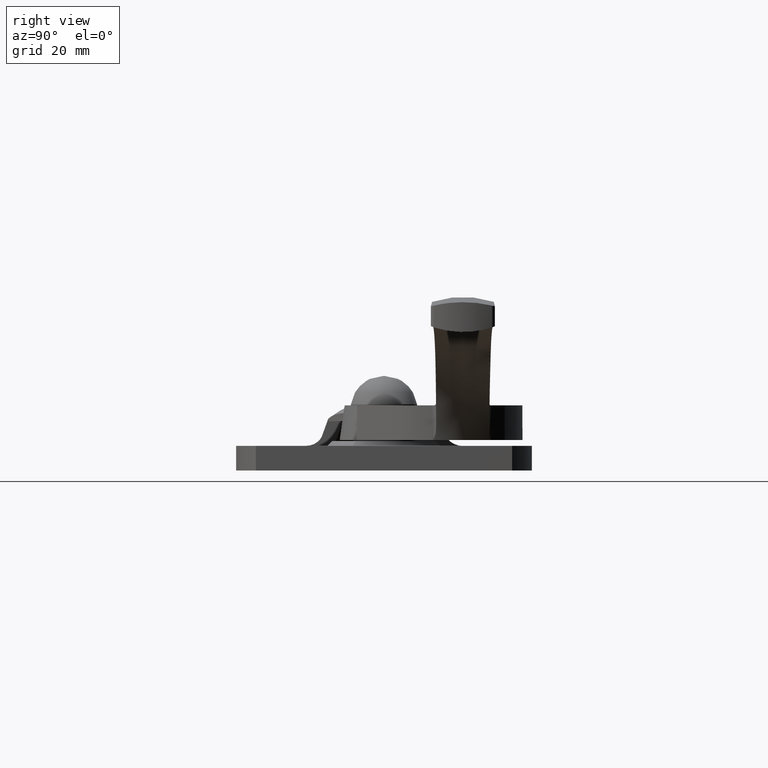
[diagram: clean part render]
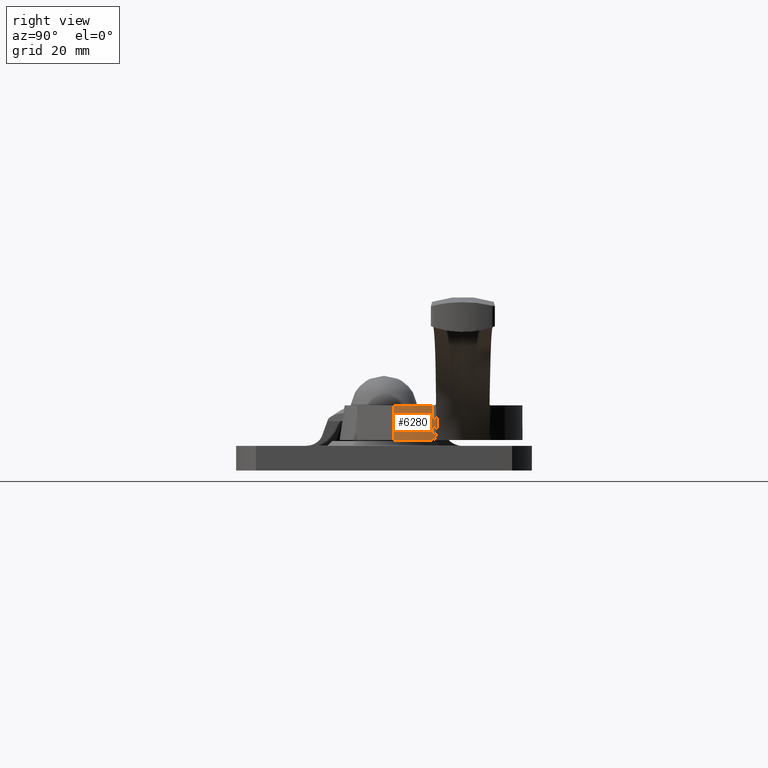
[diagram: same view with one face highlighted and labeled with its STEP entity id]
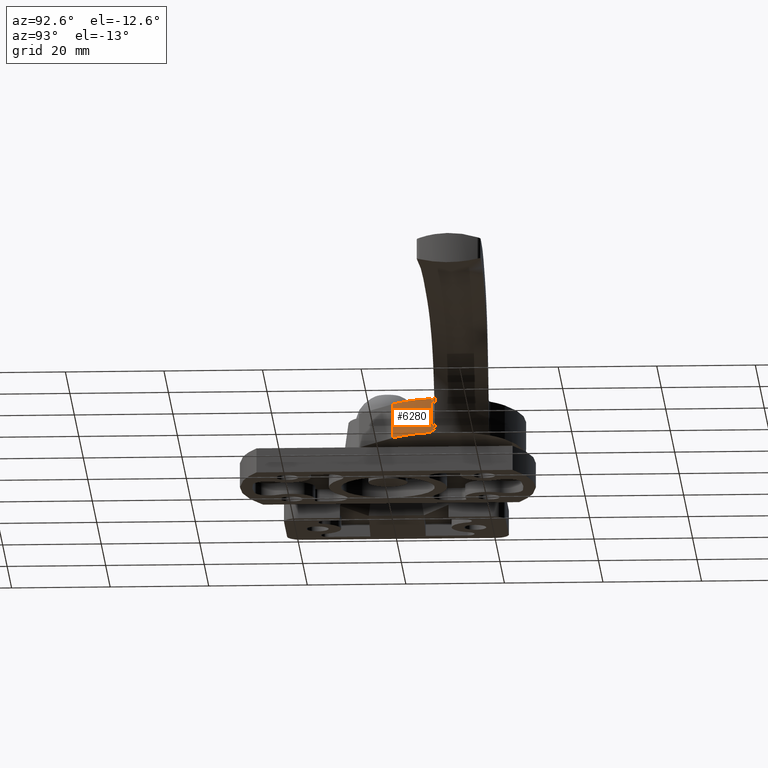
[diagram: same view with one face highlighted and labeled with its STEP entity id]
A machine part, right view. The second image highlights one B-rep face of the part: STEP entity #6280.
A second angle (auxiliary view) of the same face is appended — the face is thin or edge-on in the first view.
In plain terms, the highlighted face is a freeform B-spline surface patch.
Its self-contained STEP definition (entity closure, byte-faithful):
#5264=CARTESIAN_POINT('',(22.796887789675299,9.768281165466760,6.200000000000090));
#5265=VERTEX_POINT('',#5264);
#5310=CARTESIAN_POINT('',(22.796887789675299,9.768281165466760,13.199999999999999));
#5311=VERTEX_POINT('',#5310);
#5325=CARTESIAN_POINT('',(22.796887789675299,9.768281165466760,13.199999999999999));
#5326=CARTESIAN_POINT('',(22.796887789675299,9.768281165466760,6.200000000000090));
#5327=QUASI_UNIFORM_CURVE('',1,(#5325,#5326),.UNSPECIFIED.,.F.,.U.);
#5328=EDGE_CURVE('',#5311,#5265,#5327,.T.);
#6065=CARTESIAN_POINT('',(18.141911000000000,1.854384000000000,13.199999999999999));
#6066=VERTEX_POINT('',#6065);
#6073=CARTESIAN_POINT('',(18.141911000000000,1.854384000000000,6.200000000000090));
#6074=VERTEX_POINT('',#6073);
#6080=CARTESIAN_POINT('',(18.141911000000000,1.854384000000000,6.200000000000090));
#6081=CARTESIAN_POINT('',(18.141911000000000,1.854384000000000,13.199999999999999));
#6082=QUASI_UNIFORM_CURVE('',1,(#6080,#6081),.UNSPECIFIED.,.F.,.U.);
#6083=EDGE_CURVE('',#6074,#6066,#6082,.T.);
#6166=CARTESIAN_POINT('',(22.796887789675289,9.768281165466767,6.200000000000090));
#6167=CARTESIAN_POINT('',(21.873414532033678,4.985486891369154,6.200000000000090));
#6168=CARTESIAN_POINT('',(18.141911000000000,1.854383999999999,6.200000000000090));
#6176=(BOUNDED_CURVE()B_SPLINE_CURVE(2,(#6166,#6167,#6168),.UNSPECIFIED.,.F.,.U.)CURVE()GEOMETRIC_REPRESENTATION_ITEM()QUASI_UNIFORM_CURVE()RATIONAL_B_SPLINE_CURVE((1.0,0.942432503693558,1.0))REPRESENTATION_ITEM(''));
#6177=EDGE_CURVE('',#5265,#6074,#6176,.T.);
#6248=CARTESIAN_POINT('',(22.860397729342051,10.122022381904770,6.025000000000091));
#6249=CARTESIAN_POINT('',(22.860397729342051,10.122022381904770,13.379375000000000));
#6250=CARTESIAN_POINT('',(21.986171240052251,4.857401012698621,6.025000000000091));
#6251=CARTESIAN_POINT('',(21.986171240052251,4.857401012698621,13.379374999999991));
#6252=CARTESIAN_POINT('',(17.785710166881724,1.565496261880777,6.025000000000092));
#6253=CARTESIAN_POINT('',(17.785710166881724,1.565496261880777,13.379375000000005));
#6261=(BOUNDED_SURFACE()B_SPLINE_SURFACE(1,2,((#6248,#6250,#6252),(#6249,#6251,#6253)),.UNSPECIFIED.,.F.,.F.,.U.)B_SPLINE_SURFACE_WITH_KNOTS((2,2),(3,3),(0.0,7.354374999999907),(0.0,10.298042142083800),.UNSPECIFIED.)GEOMETRIC_REPRESENTATION_ITEM()RATIONAL_B_SPLINE_SURFACE(((1.0,0.929745860880183,0.995056273663037),(1.0,0.929745860880183,0.995056273663037)))REPRESENTATION_ITEM('')SURFACE());
#6262=CARTESIAN_POINT('',(22.796887789675289,9.768281165466767,13.199999999999999));
#6263=CARTESIAN_POINT('',(21.873414532033678,4.985486891369154,13.200000000000003));
#6264=CARTESIAN_POINT('',(18.141911000000000,1.854383999999999,13.199999999999999));
#6272=(BOUNDED_CURVE()B_SPLINE_CURVE(2,(#6262,#6263,#6264),.UNSPECIFIED.,.F.,.U.)CURVE()GEOMETRIC_REPRESENTATION_ITEM()QUASI_UNIFORM_CURVE()RATIONAL_B_SPLINE_CURVE((1.0,0.942432503693558,1.0))REPRESENTATION_ITEM(''));
#6273=EDGE_CURVE('',#5311,#6066,#6272,.T.);
#6274=ORIENTED_EDGE('',*,*,#6273,.T.);
#6275=ORIENTED_EDGE('',*,*,#6083,.F.);
#6276=ORIENTED_EDGE('',*,*,#6177,.F.);
#6277=ORIENTED_EDGE('',*,*,#5328,.F.);
#6278=EDGE_LOOP('',(#6274,#6275,#6276,#6277));
#6279=FACE_OUTER_BOUND('',#6278,.T.);
#6280=ADVANCED_FACE('',(#6279),#6261,.T.);